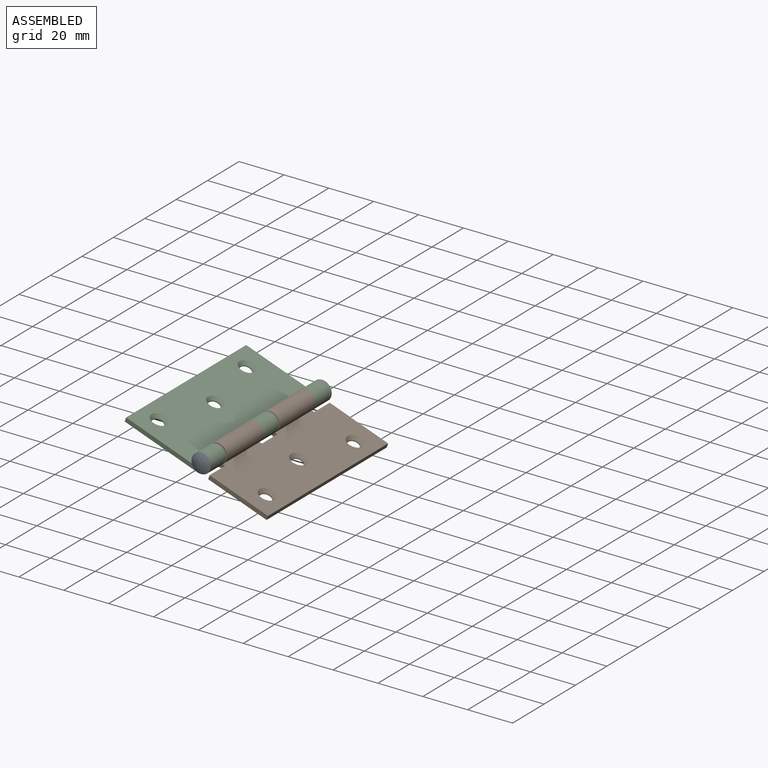
[diagram: assembled view]
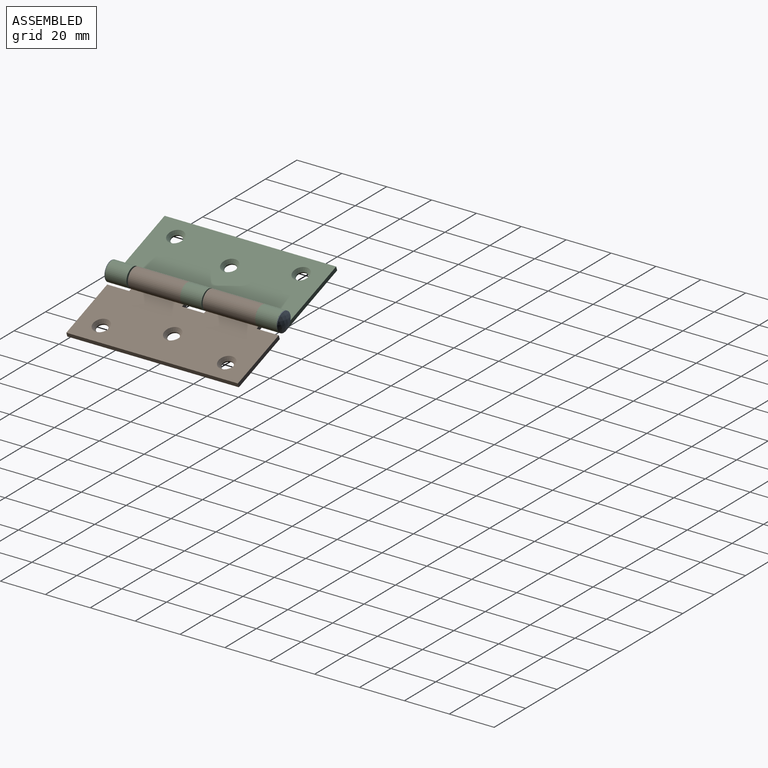
[diagram: assembled view, second angle]
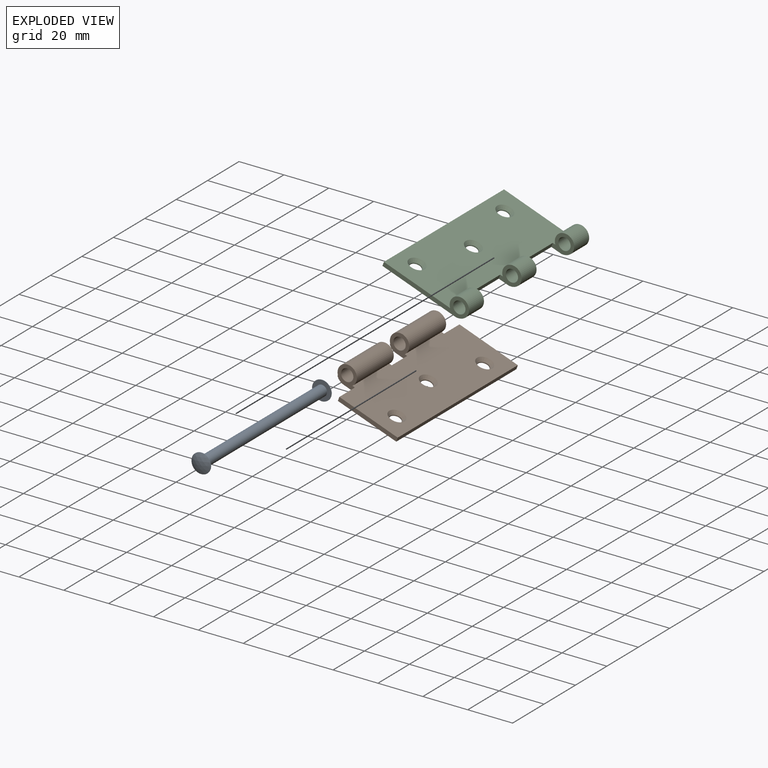
[diagram: exploded view]
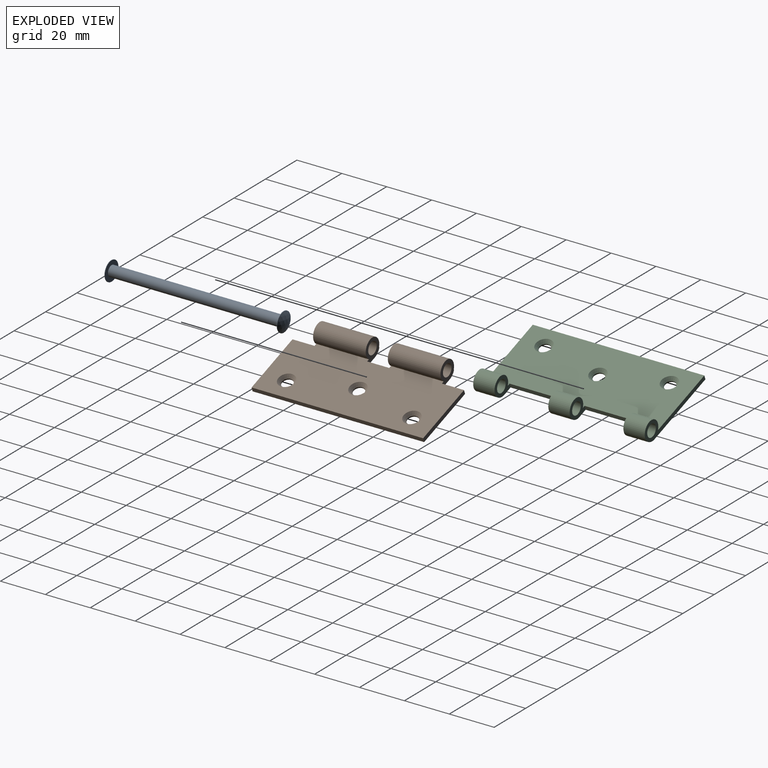
[diagram: exploded view, second angle]
ASSEMBLY  parts=3 mates=3
PART A: 7 faces, bbox 8.8x79.2x8.7 mm
  f0: plane 8.64x8.64mm, normal (0,-1,0), area 40.8mm2, adj f1,f3
  f1: cylinder r=4.32mm len=8.64mm, axis (0,-1,0), area 5.4mm2, adj f0,f2
  f2: sphere r=8.86mm, area 62.5mm2, adj f1
  f3: cylinder r=2.38mm len=76.56mm, axis (0,-1,0), area 1145.4mm2, adj f0,f6
  f4: sphere r=8.86mm, area 62.5mm2, adj f5
  f5: cylinder r=4.32mm len=8.64mm, axis (0,-1,0), area 5.4mm2, adj f4,f6
  f6: plane 8.64x8.64mm, normal (0,1,0), area 40.8mm2, adj f3,f5
PART B: 26 faces, bbox 36.6x76.5x8.9 mm
  f0: plane 76.45x28.86mm, normal (0,0,1), area 2048.4mm2, adj f3,f4,f5,f6,f7,f8,f10,f11
  f1: cylinder r=4.57mm len=23.46mm, axis (0,-1,0), area 99.5mm2, adj f5,f6,f9,f17
  f2: cylinder r=4.57mm len=23.46mm, axis (0,-1,0), area 99.5mm2, adj f3,f4,f9,f18
  f3: plane 8.89x8.89mm, normal (0,-1,0), area 40.8mm2, adj f0,f2,f9,f11,f15,f18,f19
  f4: plane 8.89x8.89mm, normal (0,1,0), area 40.8mm2, adj f0,f2,f9,f12,f15,f18,f19
  f5: plane 8.89x8.89mm, normal (0,-1,0), area 40.8mm2, adj f0,f1,f9,f12,f13,f16,f17
  f6: plane 8.89x8.89mm, normal (0,1,0), area 40.8mm2, adj f0,f1,f9,f13,f14,f16,f17
  f7: plane 27.69x1.91mm, normal (0,1,0), area 52.7mm2, adj f0,f9,f10,f14
  f8: plane 27.69x1.91mm, normal (0,-1,0), area 52.7mm2, adj f0,f9,f10,f11
  f9: plane 76.45x32.26mm, normal (0,0,-1), area 2276.4mm2, adj f1,f2,f3,f4,f5,f6,f7,f8
  f10: plane 76.45x1.91mm, normal (1,0,0), area 145.6mm2, adj f0,f7,f8,f9
  f11: plane 9.84x1.91mm, normal (-1,0,0), area 18.7mm2, adj f0,f3,f8,f9
  f12: plane 9.84x1.91mm, normal (-1,0,0), area 18.7mm2, adj f0,f4,f5,f9
  f13: cylinder r=2.74mm len=23.46mm, axis (0,-1,0), area 404.4mm2, adj f5,f6
  f14: plane 9.84x1.91mm, normal (-1,0,0), area 18.7mm2, adj f0,f6,f7,f9
  f15: cylinder r=2.74mm len=23.46mm, axis (0,-1,0), area 404.4mm2, adj f3,f4
  f16: cylinder r=4.32mm len=23.46mm, axis (0,1,0), area 455.5mm2, adj f0,f5,f6,f17
  f17: plane 23.46x0.32mm, normal (0,0,1), area 7.6mm2, adj f1,f5,f6,f16
  f18: plane 23.46x0.32mm, normal (0,0,1), area 7.6mm2, adj f2,f3,f4,f19
  f19: cylinder r=4.32mm len=23.46mm, axis (0,1,0), area 455.5mm2, adj f0,f3,f4,f18
  f20: cylinder r=2.41mm len=4.83mm, axis (0,0,1), area 7.1mm2, adj f9,f21
  f21: cone r=2.41mm half-angle=40deg, axis (0,0,1), area 35.6mm2, adj f0,f20
  f22: cylinder r=2.41mm len=4.83mm, axis (0,0,1), area 7.1mm2, adj f9,f23
  f23: cone r=2.41mm half-angle=40deg, axis (0,0,1), area 35.6mm2, adj f0,f22
  f24: cylinder r=2.41mm len=4.83mm, axis (0,0,1), area 7.1mm2, adj f9,f25
  f25: cone r=2.41mm half-angle=40deg, axis (0,0,1), area 35.6mm2, adj f0,f24
PART C: 26 faces, bbox 39.1x76.5x8.9 mm
  f0: plane 39.12x8.89mm, normal (0,-1,0), area 97.6mm2, adj f7,f8,f9,f10,f16,f17
  f1: plane 39.12x8.89mm, normal (0,1,0), area 97.6mm2, adj f6,f7,f8,f9,f15,f18
  f2: plane 8.89x8.89mm, normal (0,-1,0), area 40.1mm2, adj f8,f9,f11,f12,f14,f19
  f3: plane 8.89x8.89mm, normal (0,1,0), area 40.1mm2, adj f8,f9,f10,f11,f16,f17
  f4: plane 8.89x8.89mm, normal (0,-1,0), area 40.1mm2, adj f6,f8,f9,f13,f15,f18
  f5: plane 8.89x8.89mm, normal (0,1,0), area 40.1mm2, adj f8,f9,f12,f13,f14,f19
  f6: cylinder r=2.74mm len=9.53mm, axis (0,1,0), area 164.2mm2, adj f1,f4
  f7: plane 76.45x1.91mm, normal (-1,0,0), area 145.6mm2, adj f0,f1,f8,f9
  f8: plane 76.45x34.8mm, normal (0,0,-1), area 2386.7mm2, adj f0,f1,f2,f3,f4,f5,f7,f11
  f9: plane 76.45x31.4mm, normal (0,0,1), area 2221mm2, adj f0,f1,f2,f3,f4,f5,f7,f11
  f10: cylinder r=2.74mm len=9.53mm, axis (0,1,0), area 164.2mm2, adj f0,f3
  f11: plane 23.94x1.91mm, normal (1,0,0), area 45.6mm2, adj f2,f3,f8,f9
  f12: cylinder r=2.74mm len=9.53mm, axis (0,1,0), area 164.2mm2, adj f2,f5
  f13: plane 23.94x1.91mm, normal (1,0,0), area 45.6mm2, adj f4,f5,f8,f9
  f14: cylinder r=4.32mm len=9.53mm, axis (0,1,0), area 184.9mm2, adj f2,f5,f9,f19
  f15: cylinder r=4.32mm len=9.53mm, axis (0,1,0), area 184.9mm2, adj f1,f4,f9,f18
  f16: cylinder r=4.32mm len=9.53mm, axis (0,1,0), area 184.9mm2, adj f0,f3,f9,f17
  f17: cylinder r=5.12mm len=9.53mm, axis (0,1,0), area 37.1mm2, adj f0,f3,f8,f16
  f18: cylinder r=5.12mm len=9.53mm, axis (0,1,0), area 37.1mm2, adj f1,f4,f8,f15
  f19: cylinder r=5.12mm len=9.53mm, axis (0,1,0), area 37.1mm2, adj f2,f5,f8,f14
  f20: cylinder r=2.41mm len=4.83mm, axis (0,0,1), area 7.1mm2, adj f8,f24
  f21: cylinder r=2.41mm len=4.83mm, axis (0,0,1), area 7.1mm2, adj f8,f25
  f22: cylinder r=2.41mm len=4.83mm, axis (0,0,1), area 7.1mm2, adj f8,f23
  f23: cone r=2.41mm half-angle=40deg, axis (0,0,1), area 35.6mm2, adj f9,f22
  f24: cone r=2.41mm half-angle=40deg, axis (0,0,1), area 35.6mm2, adj f9,f20
  f25: cone r=2.41mm half-angle=40deg, axis (0,0,1), area 35.6mm2, adj f9,f21
PLACE A rot(axis=(0,1,0),20deg) t=(-14.27,6.91,-7.78)mm
PLACE B rot(axis=(0,1,0),20deg) t=(-14.27,7.22,-7.78)mm
PLACE C rot(axis=(0,1,0),20deg) t=(-14.27,6.91,-7.78)mm
MATE revolute B.f16 <-> C.f6  axis (0,1,0) through (-12.71,35.61,-3.48)mm
MATE revolute A.f1 <-> C.f6  axis (0,-1,0) through (-12.71,6.91,-3.48)mm
MATE revolute A.f1 <-> B.f1  axis (0,-1,0) through (-12.71,-31.37,-3.48)mm
